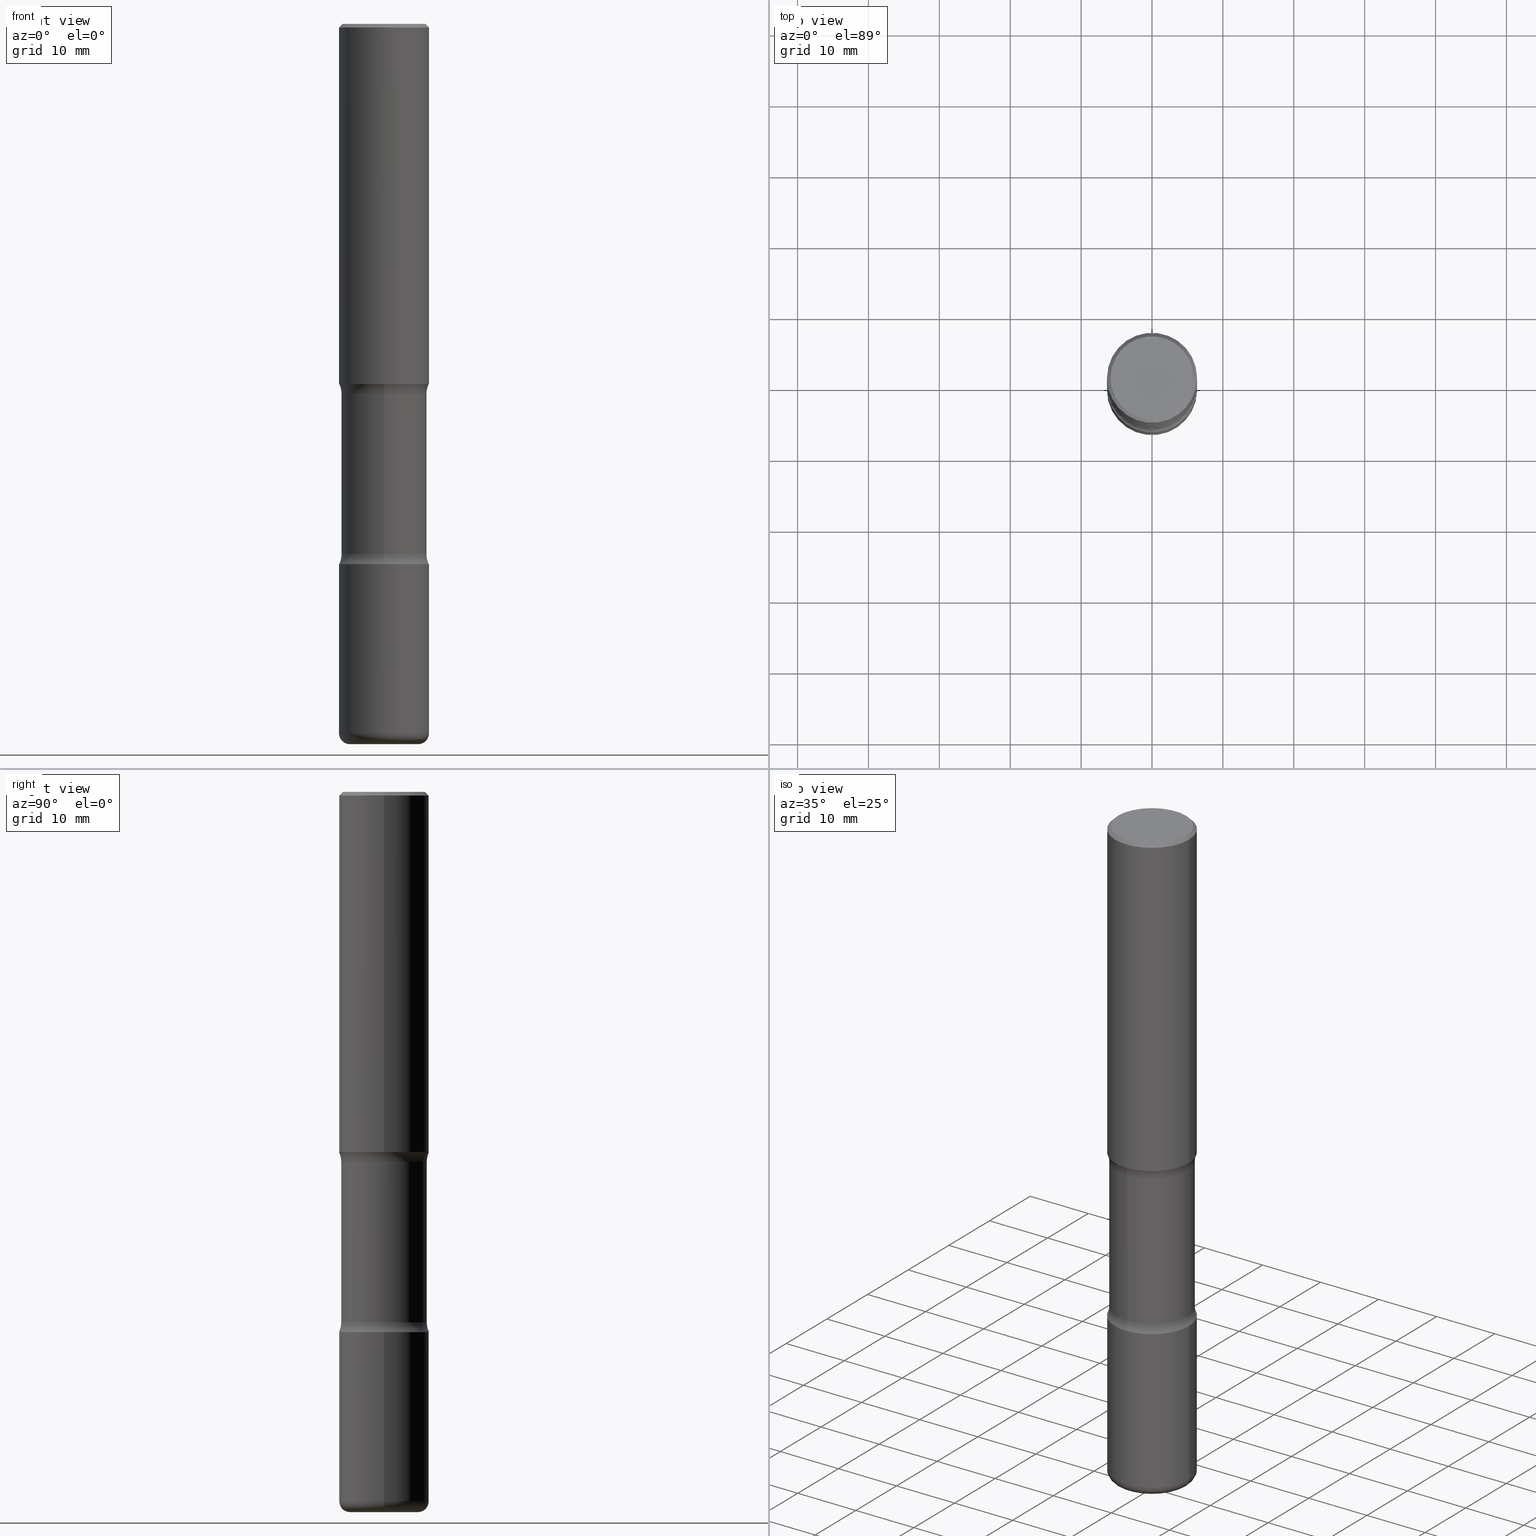
[diagram: canonical four-view strip — front | top / right | iso, engineering-drawing reading convention]
A machine part, canonical four-view strip (front | top / right | iso — engineering-drawing reading convention). The complete STEP part file that produces these views, byte-faithful:
ISO-10303-21;
HEADER;
FILE_DESCRIPTION (( 'STEP AP203' ),
    '1' );
FILE_NAME ('37882.STEP',
    '2024-03-02T01:02:48',
    ( '' ),
    ( '' ),
    'SwSTEP 2.0',
    'SolidWorks 2023',
    '' );
FILE_SCHEMA (( 'CONFIG_CONTROL_DESIGN' ));
ENDSEC;

DATA;
#1 = ORIENTED_EDGE ( 'NONE', *, *, #495, .T. ) ;
#2 = DATE_AND_TIME ( #174, #307 ) ;
#3 = CYLINDRICAL_SURFACE ( 'NONE', #127, 0.2500000000000003331 ) ;
#4 = AXIS2_PLACEMENT_3D ( 'NONE', #512, #84, #30 ) ;
#5 = FACE_OUTER_BOUND ( 'NONE', #252, .T. ) ;
#6 = VECTOR ( 'NONE', #262, 39.37007874015748143 ) ;
#7 = SECURITY_CLASSIFICATION_LEVEL ( 'unclassified' ) ;
#8 = DIRECTION ( 'NONE',  ( -2.445468806185136597E-29, 3.491481338843145583E-15, 1.000000000000000000 ) ) ;
#9 = LINE ( 'NONE', #469, #6 ) ;
#10 = PERSON_AND_ORGANIZATION_ROLE ( 'design_supplier' ) ;
#11 = DIRECTION ( 'NONE',  ( 6.982962677686265922E-15, 1.000000000000000000, -3.369885892833230592E-15 ) ) ;
#12 = CARTESIAN_POINT ( 'NONE',  ( 9.781875224740546387E-29, -1.396592535537258233E-14, -4.000000000000000000 ) ) ;
#13 = ORIENTED_EDGE ( 'NONE', *, *, #245, .T. ) ;
#14 = DIRECTION ( 'NONE',  ( 7.105427357601001859E-15, 1.000000000000000000, -3.491481338843145583E-15 ) ) ;
#15 = FACE_OUTER_BOUND ( 'NONE', #299, .T. ) ;
#16 = VECTOR ( 'NONE', #150, 39.37007874015748143 ) ;
#17 = ADVANCED_FACE ( 'NONE', ( #15 ), #170, .F. ) ;
#18 = AXIS2_PLACEMENT_3D ( 'NONE', #482, #514, #545 ) ;
#19 = ADVANCED_FACE ( 'NONE', ( #533 ), #438, .F. ) ;
#20 =( LENGTH_UNIT ( ) NAMED_UNIT ( * ) SI_UNIT ( $, .METRE. ) );
#21 = CARTESIAN_POINT ( 'NONE',  ( -1.715124499442836348E-15, -0.2500000000000074385, -1.999999999999999112 ) ) ;
#22 = PERSON ( 'UNSPECIFIED', 'UNSPECIFIED', 'UNSPECIFIED', ('UNSPECIFIED'), ('UNSPECIFIED'), ('UNSPECIFIED') ) ;
#23 = DIRECTION ( 'NONE',  ( 6.982962677686265922E-15, 1.000000000000000000, -4.370956789862816416E-15 ) ) ;
#24 = CARTESIAN_POINT ( 'NONE',  ( -1.672246386956763723E-15, -0.2375000000000074274, -2.054486236794258236 ) ) ;
#25 = DIRECTION ( 'NONE',  ( -1.000000000000000000, 6.982962677686267499E-15, 0.000000000000000000 ) ) ;
#26 = DIRECTION ( 'NONE',  ( -2.445468806185136597E-29, 3.491481338843145583E-15, 1.000000000000000000 ) ) ;
#27 = AXIS2_PLACEMENT_3D ( 'NONE', #459, #159, #329 ) ;
#28 = AXIS2_PLACEMENT_3D ( 'NONE', #518, #134, #25 ) ;
#29 = DIRECTION ( 'NONE',  ( 1.000000000000000000, -6.982962677686265922E-15, 0.000000000000000000 ) ) ;
#30 = DIRECTION ( 'NONE',  ( 1.000000000000000000, -6.982962677686269077E-15, 4.883557194083113462E-29 ) ) ;
#31 = CARTESIAN_POINT ( 'NONE',  ( 7.203162026108633562E-29, -1.028420633753849345E-14, -2.945513763205741320 ) ) ;
#32 = VERTEX_POINT ( 'NONE', #94 ) ;
#33 = CC_DESIGN_APPROVAL ( #458, ( #198 ) ) ;
#34 = CIRCLE ( 'NONE', #549, 0.2500000000000002776 ) ;
#35 = EDGE_LOOP ( 'NONE', ( #306, #277 ) ) ;
#36 = EDGE_CURVE ( 'NONE', #82, #128, #389, .T. ) ;
#37 = CC_DESIGN_PERSON_AND_ORGANIZATION_ASSIGNMENT ( #138, #352, ( #410 ) ) ;
#38 = VERTEX_POINT ( 'NONE', #309 ) ;
#39 = MANIFOLD_SOLID_BREP ( 'Body-Move/Copy2[4]', #259 ) ;
#40 = ORIENTED_EDGE ( 'NONE', *, *, #212, .F. ) ;
#41 = CARTESIAN_POINT ( 'NONE',  ( -0.2299999999999998990, 1.640996229256271928E-15, -1.135408596578605420E-29 ) ) ;
#42 = CIRCLE ( 'NONE', #490, 0.2500000000000003886 ) ;
#43 = AXIS2_PLACEMENT_3D ( 'NONE', #278, #179, #475 ) ;
#44 = EDGE_LOOP ( 'NONE', ( #460, #1, #121, #476 ) ) ;
#45 = CARTESIAN_POINT ( 'NONE',  ( 7.198535619023675570E-29, -1.029083161580289368E-14, -2.945513763205741320 ) ) ;
#46 = APPROVAL_DATE_TIME ( #430, #458 ) ;
#47 = CARTESIAN_POINT ( 'NONE',  ( 4.976491023364875751E-29, -7.241496556518841686E-15, -2.054486236794258680 ) ) ;
#48 = AXIS2_PLACEMENT_3D ( 'NONE', #243, #296, #419 ) ;
#49 = DIRECTION ( 'NONE',  ( 1.000000000000000000, -6.982962677686270655E-15, 0.000000000000000000 ) ) ;
#50 = CIRCLE ( 'NONE', #508, 0.2375000000000001277 ) ;
#51 = PLANE ( 'NONE',  #18 ) ;
#52 = EDGE_CURVE ( 'NONE', #78, #82, #9, .T. ) ;
#53 = CALENDAR_DATE ( 2024, 1, 3 ) ;
#54 = DIRECTION ( 'NONE',  ( -6.982962677686266711E-15, -1.000000000000000000, 3.491481338843145583E-15 ) ) ;
#55 = ORIENTED_EDGE ( 'NONE', *, *, #225, .F. ) ;
#56 = PERSON_AND_ORGANIZATION_ROLE ( 'creator' ) ;
#57 = ORIENTED_EDGE ( 'NONE', *, *, #142, .F. ) ;
#58 = DIRECTION ( 'NONE',  ( 6.982962677686265133E-15, 1.000000000000000000, -2.300503573612010239E-15 ) ) ;
#59 = DATE_TIME_ROLE ( 'creation_date' ) ;
#60 = PLANE ( 'NONE',  #302 ) ;
#61 = DIRECTION ( 'NONE',  ( 2.438088387897960049E-29, -3.491481338843145188E-15, -1.000000000000000000 ) ) ;
#62 =( GEOMETRIC_REPRESENTATION_CONTEXT ( 3 ) GLOBAL_UNCERTAINTY_ASSIGNED_CONTEXT ( ( #552 ) ) GLOBAL_UNIT_ASSIGNED_CONTEXT ( ( #350, #536, #488 ) ) REPRESENTATION_CONTEXT ( 'NONE', 'WORKASPACE' ) );
#63 = CC_DESIGN_PERSON_AND_ORGANIZATION_ASSIGNMENT ( #220, #56, ( #198 ) ) ;
#64 = AXIS2_PLACEMENT_3D ( 'NONE', #394, #8, #92 ) ;
#65 = EDGE_CURVE ( 'NONE', #172, #229, #424, .T. ) ;
#66 = CARTESIAN_POINT ( 'NONE',  ( 0.000000000000000000, 0.000000000000000000, 0.000000000000000000 ) ) ;
#67 = ORIENTED_EDGE ( 'NONE', *, *, #285, .F. ) ;
#68 = DIRECTION ( 'NONE',  ( -2.445468806185136597E-29, 3.491481338843145583E-15, 1.000000000000000000 ) ) ;
#69 = MANIFOLD_SOLID_BREP ( 'Body-Move/Copy2[2]', #163 ) ;
#70 = LINE ( 'NONE', #364, #87 ) ;
#71 = CIRCLE ( 'NONE', #272, 0.2500000000000003886 ) ;
#72 = AXIS2_PLACEMENT_3D ( 'NONE', #75, #373, #113 ) ;
#73 = DIRECTION ( 'NONE',  ( 2.530378452311521502E-29, -3.369885892833230986E-15, -1.000000000000000000 ) ) ;
#74 = DATE_AND_TIME ( #149, #478 ) ;
#75 = CARTESIAN_POINT ( 'NONE',  ( 7.198535619023675570E-29, -1.029083161580289368E-14, -2.945513763205741320 ) ) ;
#76 = ORIENTED_EDGE ( 'NONE', *, *, #495, .F. ) ;
#77 = ADVANCED_FACE ( 'NONE', ( #173 ), #213, .T. ) ;
#78 = VERTEX_POINT ( 'NONE', #196 ) ;
#79 = CC_DESIGN_PERSON_AND_ORGANIZATION_ASSIGNMENT ( #398, #144, ( #420 ) ) ;
#80 = AXIS2_PLACEMENT_3D ( 'NONE', #31, #236, #194 ) ;
#81 = ORIENTED_EDGE ( 'NONE', *, *, #280, .T. ) ;
#82 = VERTEX_POINT ( 'NONE', #154 ) ;
#83 = VERTEX_POINT ( 'NONE', #439 ) ;
#84 = DIRECTION ( 'NONE',  ( -2.445468806185136597E-29, 3.491481338843145583E-15, 1.000000000000000000 ) ) ;
#85 = VECTOR ( 'NONE', #521, 39.37007874015748143 ) ;
#86 = DIRECTION ( 'NONE',  ( -2.445468806185136877E-29, 3.491481338843145188E-15, 1.000000000000000000 ) ) ;
#87 = VECTOR ( 'NONE', #330, 39.37007874015748143 ) ;
#88 = EDGE_LOOP ( 'NONE', ( #76, #503, #513, #171 ) ) ;
#89 = VERTEX_POINT ( 'NONE', #143 ) ;
#90 = ADVANCED_FACE ( 'NONE', ( #318 ), #485, .T. ) ;
#91 = DIRECTION ( 'NONE',  ( 1.000000000000000000, -6.982962677686267499E-15, 0.000000000000000000 ) ) ;
#92 = DIRECTION ( 'NONE',  ( 1.000000000000000000, -6.982962677686269077E-15, 0.000000000000000000 ) ) ;
#93 = CARTESIAN_POINT ( 'NONE',  ( 1.658453635950587543E-15, 0.2374999999999862776, -4.000000000000000888 ) ) ;
#94 = CARTESIAN_POINT ( 'NONE',  ( -0.2500000000000003331, -1.198007963564174197E-14, -3.939999999999999947 ) ) ;
#95 = COORDINATED_UNIVERSAL_TIME_OFFSET ( 5, 0, .BEHIND. ) ;
#96 = DIRECTION ( 'NONE',  ( 6.860497997771532351E-15, 1.000000000000000000, 0.000000000000000000 ) ) ;
#97 = APPROVAL_PERSON_ORGANIZATION ( #184, #458, #472 ) ;
#98 = CARTESIAN_POINT ( 'NONE',  ( -0.1900000000000003630, -1.229798689653506559E-14, -4.000000000000000000 ) ) ;
#99 = AXIS2_PLACEMENT_3D ( 'NONE', #440, #531, #228 ) ;
#100 = PERSON_AND_ORGANIZATION ( #22, #334 ) ;
#101 = FACE_OUTER_BOUND ( 'NONE', #211, .T. ) ;
#102 = EDGE_CURVE ( 'NONE', #497, #208, #189, .T. ) ;
#103 = ORIENTED_EDGE ( 'NONE', *, *, #429, .F. ) ;
#104 = DIRECTION ( 'NONE',  ( 2.530378452311521502E-29, -3.369885892833230986E-15, -1.000000000000000000 ) ) ;
#105 = EDGE_CURVE ( 'NONE', #555, #522, #362, .T. ) ;
#106 = CARTESIAN_POINT ( 'NONE',  ( 0.000000000000000000, 0.000000000000000000, 0.000000000000000000 ) ) ;
#107 = FACE_OUTER_BOUND ( 'NONE', #136, .T. ) ;
#108 = CARTESIAN_POINT ( 'NONE',  ( 0.000000000000000000, 0.000000000000000000, 0.000000000000000000 ) ) ;
#109 = CONICAL_SURFACE ( 'NONE', #283, 0.2499999999999999167, 0.7853981633974472798 ) ;
#110 = DIRECTION ( 'NONE',  ( 2.530378452311521502E-29, -3.369885892833230986E-15, -1.000000000000000000 ) ) ;
#111 = EDGE_CURVE ( 'NONE', #89, #229, #244, .T. ) ;
#112 = CARTESIAN_POINT ( 'NONE',  ( 9.635147096369438236E-29, -1.375643647504199401E-14, -3.939999999999999947 ) ) ;
#113 = DIRECTION ( 'NONE',  ( 6.982962677686265133E-15, 1.000000000000000000, -2.300503573612010239E-15 ) ) ;
#114 = CARTESIAN_POINT ( 'NONE',  ( 0.000000000000000000, 0.000000000000000000, 0.000000000000000000 ) ) ;
#115 = DIRECTION ( 'NONE',  ( 1.000000000000000000, -6.860497997771530774E-15, 4.842287994361612002E-29 ) ) ;
#116 = DIMENSIONAL_EXPONENTS ( 1.000000000000000000, 0.000000000000000000, 0.000000000000000000, 0.000000000000000000, 0.000000000000000000, 0.000000000000000000, 0.000000000000000000 ) ;
#117 = CIRCLE ( 'NONE', #325, 0.05999999999999997696 ) ;
#118 = DIRECTION ( 'NONE',  ( -2.445468806185136597E-29, 3.491481338843145583E-15, 1.000000000000000000 ) ) ;
#119 = CIRCLE ( 'NONE', #339, 0.2500000000000003886 ) ;
#120 = VECTOR ( 'NONE', #147, 39.37007874015748143 ) ;
#121 = ORIENTED_EDGE ( 'NONE', *, *, #36, .F. ) ;
#122 = ORIENTED_EDGE ( 'NONE', *, *, #111, .T. ) ;
#123 = DIRECTION ( 'NONE',  ( -2.530378452311521502E-29, 3.369885892833230592E-15, 1.000000000000000000 ) ) ;
#124 = ORIENTED_EDGE ( 'NONE', *, *, #65, .T. ) ;
#125 = ADVANCED_FACE ( 'NONE', ( #525 ), #60, .F. ) ;
#126 = AXIS2_PLACEMENT_3D ( 'NONE', #135, #444, #396 ) ;
#127 = AXIS2_PLACEMENT_3D ( 'NONE', #108, #291, #327 ) ;
#128 = VERTEX_POINT ( 'NONE', #221 ) ;
#129 = DIRECTION ( 'NONE',  ( -6.982962677686265922E-15, -1.000000000000000000, 3.369885892833230592E-15 ) ) ;
#130 = ORIENTED_EDGE ( 'NONE', *, *, #504, .F. ) ;
#131 = CARTESIAN_POINT ( 'NONE',  ( -0.2499999999999999167, 1.675911042644703182E-15, -0.02000000000000006981 ) ) ;
#132 = ORIENTED_EDGE ( 'NONE', *, *, #270, .F. ) ;
#133 = AXIS2_PLACEMENT_3D ( 'NONE', #203, #240, #332 ) ;
#134 = DIRECTION ( 'NONE',  ( 2.445468806185136597E-29, -3.491481338843145583E-15, -1.000000000000000000 ) ) ;
#135 = CARTESIAN_POINT ( 'NONE',  ( 4.890937612370273194E-29, -6.982962677686291165E-15, -2.000000000000000000 ) ) ;
#136 = EDGE_LOOP ( 'NONE', ( #416, #214 ) ) ;
#137 = FACE_OUTER_BOUND ( 'NONE', #166, .T. ) ;
#138 = PERSON_AND_ORGANIZATION ( #22, #334 ) ;
#139 = VECTOR ( 'NONE', #86, 39.37007874015748143 ) ;
#140 = ORIENTED_EDGE ( 'NONE', *, *, #371, .F. ) ;
#141 = CIRCLE ( 'NONE', #427, 0.2499999999999999167 ) ;
#142 = EDGE_CURVE ( 'NONE', #83, #172, #519, .T. ) ;
#143 = CARTESIAN_POINT ( 'NONE',  ( 1.745740669421641422E-15, 0.2499999999999897582, -3.000000000000000888 ) ) ;
#144 = PERSON_AND_ORGANIZATION_ROLE ( 'creator' ) ;
#145 = DIRECTION ( 'NONE',  ( 1.000000000000000000, -6.982962677686265922E-15, 4.876176775795935793E-29 ) ) ;
#146 = DIRECTION ( 'NONE',  ( -2.445468806185136597E-29, 3.491481338843145583E-15, 1.000000000000000000 ) ) ;
#147 = DIRECTION ( 'NONE',  ( -2.445468806185136877E-29, 3.491481338843145188E-15, 1.000000000000000000 ) ) ;
#148 = CARTESIAN_POINT ( 'NONE',  ( 7.336406418555409790E-29, -1.047444401652943635E-14, -3.000000000000000444 ) ) ;
#149 = CALENDAR_DATE ( 2024, 1, 3 ) ;
#150 = DIRECTION ( 'NONE',  ( -2.445468806185136877E-29, 3.491481338843145188E-15, 1.000000000000000000 ) ) ;
#151 = MECHANICAL_CONTEXT ( 'NONE', #216, 'mechanical' ) ;
#152 = CIRCLE ( 'NONE', #126, 0.2500000000000001665 ) ;
#153 = DIRECTION ( 'NONE',  ( 6.982962677686265133E-15, 1.000000000000000000, -2.300503573612010239E-15 ) ) ;
#154 = CARTESIAN_POINT ( 'NONE',  ( 0.2500000000000002776, -1.222018468595100619E-14, -3.000000000000000444 ) ) ;
#155 = EDGE_CURVE ( 'NONE', #522, #78, #557, .T. ) ;
#156 = ADVANCED_FACE ( 'NONE', ( #101 ), #314, .F. ) ;
#157 = EDGE_LOOP ( 'NONE', ( #57, #227, #122, #421 ) ) ;
#158 = DIRECTION ( 'NONE',  ( 1.000000000000000000, -6.982962677686267499E-15, 0.000000000000000000 ) ) ;
#159 = DIRECTION ( 'NONE',  ( 0.000000000000000000, 0.000000000000000000, 1.000000000000000000 ) ) ;
#160 = DIRECTION ( 'NONE',  ( 2.530378452311521502E-29, -3.369885892833230986E-15, -1.000000000000000000 ) ) ;
#161 = AXIS2_PLACEMENT_3D ( 'NONE', #106, #356, #392 ) ;
#162 = EDGE_CURVE ( 'NONE', #555, #32, #117, .T. ) ;
#163 = CLOSED_SHELL ( 'NONE', ( #559, #77, #395, #365, #19, #526 ) ) ;
#164 = EDGE_LOOP ( 'NONE', ( #493, #132 ) ) ;
#165 = EDGE_LOOP ( 'NONE', ( #428, #553, #386, #317 ) ) ;
#166 = EDGE_LOOP ( 'NONE', ( #199, #524, #301, #298 ) ) ;
#167 = EDGE_CURVE ( 'NONE', #304, #348, #402, .T. ) ;
#168 = LINE ( 'NONE', #131, #435 ) ;
#169 = LOCAL_TIME ( 20, 2, 48.00000000000000000, #520 ) ;
#170 = TOROIDAL_SURFACE ( 'NONE', #343, 0.3625000000000000999, 0.1250000000000000000 ) ;
#171 = ORIENTED_EDGE ( 'NONE', *, *, #280, .F. ) ;
#172 = VERTEX_POINT ( 'NONE', #431 ) ;
#173 = FACE_OUTER_BOUND ( 'NONE', #258, .T. ) ;
#174 = CALENDAR_DATE ( 2024, 1, 3 ) ;
#175 = AXIS2_PLACEMENT_3D ( 'NONE', #551, #123, #129 ) ;
#176 = DIRECTION ( 'NONE',  ( -2.445468806185136597E-29, 3.491481338843145583E-15, 1.000000000000000000 ) ) ;
#177 = EDGE_LOOP ( 'NONE', ( #383, #336 ) ) ;
#178 = FACE_OUTER_BOUND ( 'NONE', #182, .T. ) ;
#179 = DIRECTION ( 'NONE',  ( -1.000000000000000000, 6.982962677686265922E-15, -4.883557194083112340E-29 ) ) ;
#180 = DIRECTION ( 'NONE',  ( -1.000000000000000000, 6.982962677686265922E-15, -4.876176775795935793E-29 ) ) ;
#181 = CARTESIAN_POINT ( 'NONE',  ( 0.1900000000000003630, -1.508319938380238721E-14, -3.939999999999999947 ) ) ;
#182 = EDGE_LOOP ( 'NONE', ( #250, #81 ) ) ;
#183 = CARTESIAN_POINT ( 'NONE',  ( 4.890937612370289799E-31, -6.982962677686315028E-17, -0.02000000000000006981 ) ) ;
#184 = PERSON_AND_ORGANIZATION ( #22, #334 ) ;
#185 = DIRECTION ( 'NONE',  ( -1.000000000000000000, 7.105427357600993970E-15, 0.000000000000000000 ) ) ;
#186 = AXIS2_PLACEMENT_3D ( 'NONE', #66, #489, #498 ) ;
#187 = CIRCLE ( 'NONE', #517, 0.2500000000000002776 ) ;
#188 = ORIENTED_EDGE ( 'NONE', *, *, #417, .T. ) ;
#189 = CIRCLE ( 'NONE', #43, 0.1250000000000000000 ) ;
#190 = CARTESIAN_POINT ( 'NONE',  ( -0.2499999999999999167, 1.675911042644703182E-15, -0.02000000000000006981 ) ) ;
#191 = DIRECTION ( 'NONE',  ( 2.530378452311521502E-29, -3.369885892833230986E-15, -1.000000000000000000 ) ) ;
#192 = CARTESIAN_POINT ( 'NONE',  ( 0.2499999999999999167, -1.784954126219745400E-15, -0.02000000000000006981 ) ) ;
#193 = APPROVAL_ROLE ( '' ) ;
#194 = DIRECTION ( 'NONE',  ( 6.982962677686265922E-15, 1.000000000000000000, -3.369885892833230986E-15 ) ) ;
#195 = DIRECTION ( 'NONE',  ( 1.000000000000000000, -6.982962677686269077E-15, 0.000000000000000000 ) ) ;
#196 = CARTESIAN_POINT ( 'NONE',  ( 0.2500000000000003331, -1.550217714446356385E-14, -3.939999999999999947 ) ) ;
#197 = CC_DESIGN_PERSON_AND_ORGANIZATION_ASSIGNMENT ( #390, #10, ( #198 ) ) ;
#198 = PRODUCT_DEFINITION_FORMATION_WITH_SPECIFIED_SOURCE ( 'ANY', '', #391, .NOT_KNOWN. ) ;
#199 = ORIENTED_EDGE ( 'NONE', *, *, #535, .T. ) ;
#200 = DIRECTION ( 'NONE',  ( 1.000000000000000000, -6.982962677686269077E-15, 4.883557194083113462E-29 ) ) ;
#201 = AXIS2_PLACEMENT_3D ( 'NONE', #230, #264, #96 ) ;
#202 = ADVANCED_FACE ( 'NONE', ( #219 ), #3, .T. ) ;
#203 = CARTESIAN_POINT ( 'NONE',  ( 0.000000000000000000, 0.000000000000000000, 0.000000000000000000 ) ) ;
#204 = CARTESIAN_POINT ( 'NONE',  ( -0.2500000000000003331, 1.776356839400252831E-15, -1.229733772563727987E-29 ) ) ;
#205 = CIRCLE ( 'NONE', #382, 0.2500000000000003886 ) ;
#206 = ORIENTED_EDGE ( 'NONE', *, *, #417, .F. ) ;
#207 = AXIS2_PLACEMENT_3D ( 'NONE', #183, #436, #358 ) ;
#208 = VERTEX_POINT ( 'NONE', #491 ) ;
#209 = ORIENTED_EDGE ( 'NONE', *, *, #388, .F. ) ;
#210 = APPLICATION_PROTOCOL_DEFINITION ( 'international standard', 'config_control_design', 1994, #249 ) ;
#211 = EDGE_LOOP ( 'NONE', ( #140, #374, #124, #550 ) ) ;
#212 = EDGE_CURVE ( 'NONE', #443, #464, #308, .T. ) ;
#213 = CONICAL_SURFACE ( 'NONE', #28, 0.2499999999999999167, 0.7853981633974472798 ) ;
#214 = ORIENTED_EDGE ( 'NONE', *, *, #285, .T. ) ;
#215 = EDGE_CURVE ( 'NONE', #229, #172, #260, .T. ) ;
#216 = APPLICATION_CONTEXT ( 'configuration controlled 3d designs of mechanical parts and assemblies' ) ;
#217 = DIRECTION ( 'NONE',  ( 2.530378452311521502E-29, -3.369885892833230986E-15, -1.000000000000000000 ) ) ;
#218 = EDGE_CURVE ( 'NONE', #38, #303, #496, .T. ) ;
#219 = FACE_OUTER_BOUND ( 'NONE', #44, .T. ) ;
#220 = PERSON_AND_ORGANIZATION ( #22, #334 ) ;
#221 = CARTESIAN_POINT ( 'NONE',  ( -0.2500000000000002776, -1.033908340638546235E-14, -3.000000000000000444 ) ) ;
#222 = AXIS2_PLACEMENT_3D ( 'NONE', #326, #110, #23 ) ;
#223 = APPLICATION_PROTOCOL_DEFINITION ( 'international standard', 'config_control_design', 1994, #216 ) ;
#224 = ORIENTED_EDGE ( 'NONE', *, *, #237, .F. ) ;
#225 = EDGE_CURVE ( 'NONE', #234, #311, #385, .T. ) ;
#226 = CARTESIAN_POINT ( 'NONE',  ( 0.1900000000000003630, -1.529268826413297711E-14, -4.000000000000000000 ) ) ;
#227 = ORIENTED_EDGE ( 'NONE', *, *, #305, .F. ) ;
#228 = DIRECTION ( 'NONE',  ( 6.982962677686265922E-15, 1.000000000000000000, -3.369885892833230986E-15 ) ) ;
#229 = VERTEX_POINT ( 'NONE', #454 ) ;
#230 = CARTESIAN_POINT ( 'NONE',  ( -2.486930524192108484E-15, -0.3625000000000104250, -2.945513763205740432 ) ) ;
#231 = APPROVAL_PERSON_ORGANIZATION ( #100, #432, #193 ) ;
#232 = DIRECTION ( 'NONE',  ( 1.000000000000000000, -6.982962677686267499E-15, 4.876176775795935793E-29 ) ) ;
#233 = AXIS2_PLACEMENT_3D ( 'NONE', #484, #26, #29 ) ;
#234 = VERTEX_POINT ( 'NONE', #24 ) ;
#235 = CARTESIAN_POINT ( 'NONE',  ( 7.336406418555409790E-29, -1.047444401652943635E-14, -3.000000000000000444 ) ) ;
#236 = DIRECTION ( 'NONE',  ( 2.530378452311521502E-29, -3.369885892833230986E-15, -1.000000000000000000 ) ) ;
#237 = EDGE_CURVE ( 'NONE', #497, #234, #50, .T. ) ;
#238 = ADVANCED_FACE ( 'NONE', ( #323 ), #286, .F. ) ;
#239 = DIRECTION ( 'NONE',  ( 6.982962677686265133E-15, 1.000000000000000000, -3.278217592397110735E-15 ) ) ;
#240 = DIRECTION ( 'NONE',  ( -2.445468806185136597E-29, 3.491481338843145583E-15, 1.000000000000000000 ) ) ;
#241 = EDGE_CURVE ( 'NONE', #348, #303, #141, .T. ) ;
#242 = CC_DESIGN_SECURITY_CLASSIFICATION ( #410, ( #198 ) ) ;
#243 = CARTESIAN_POINT ( 'NONE',  ( 4.943898765775623630E-29, -7.288170524422749615E-15, -2.054486236794258680 ) ) ;
#244 = CIRCLE ( 'NONE', #437, 0.1250000000000000278 ) ;
#245 = EDGE_CURVE ( 'NONE', #303, #348, #447, .T. ) ;
#246 = ADVANCED_FACE ( 'NONE', ( #178 ), #51, .F. ) ;
#247 = DIRECTION ( 'NONE',  ( 6.982962677686265922E-15, 1.000000000000000000, -3.369885892833230986E-15 ) ) ;
#248 = DIRECTION ( 'NONE',  ( 6.982962677686265133E-15, 1.000000000000000000, -3.450755360418014766E-15 ) ) ;
#249 = APPLICATION_CONTEXT ( 'configuration controlled 3d designs of mechanical parts and assemblies' ) ;
#250 = ORIENTED_EDGE ( 'NONE', *, *, #36, .T. ) ;
#251 = CC_DESIGN_APPROVAL ( #432, ( #410 ) ) ;
#252 = EDGE_LOOP ( 'NONE', ( #560, #265, #466, #354 ) ) ;
#253 = ADVANCED_BREP_SHAPE_REPRESENTATION ( '37882', ( #411, #69, #39, #27 ), #62 ) ;
#254 = CIRCLE ( 'NONE', #222, 0.2500000000000002776 ) ;
#255 = ORIENTED_EDGE ( 'NONE', *, *, #544, .T. ) ;
#256 = ADVANCED_FACE ( 'NONE', ( #372 ), #449, .T. ) ;
#257 = ORIENTED_EDGE ( 'NONE', *, *, #342, .T. ) ;
#258 = EDGE_LOOP ( 'NONE', ( #67, #505, #473, #206 ) ) ;
#259 = CLOSED_SHELL ( 'NONE', ( #90, #156, #369, #17, #125, #423, #238, #256 ) ) ;
#260 = CIRCLE ( 'NONE', #72, 0.2375000000000000722 ) ;
#261 = EDGE_CURVE ( 'NONE', #234, #172, #70, .T. ) ;
#262 = DIRECTION ( 'NONE',  ( -2.445468806185136877E-29, 3.491481338843145188E-15, 1.000000000000000000 ) ) ;
#263 = COORDINATED_UNIVERSAL_TIME_OFFSET ( 5, 0, .BEHIND. ) ;
#264 = DIRECTION ( 'NONE',  ( 1.000000000000000000, -6.860497997771530774E-15, 4.842287994361612002E-29 ) ) ;
#265 = ORIENTED_EDGE ( 'NONE', *, *, #270, .T. ) ;
#266 = APPROVAL_ROLE ( '' ) ;
#267 = DIRECTION ( 'NONE',  ( -1.000000000000000000, 6.982962677686265922E-15, -4.883557194083112340E-29 ) ) ;
#268 = CARTESIAN_POINT ( 'NONE',  ( 1.658453635950538436E-15, 0.2374999999999928557, -2.054486236794259568 ) ) ;
#269 = CARTESIAN_POINT ( 'NONE',  ( 7.336406418555409790E-29, -1.047444401652943635E-14, -3.000000000000000444 ) ) ;
#270 = EDGE_CURVE ( 'NONE', #38, #304, #471, .T. ) ;
#271 = CALENDAR_DATE ( 2024, 1, 3 ) ;
#272 = AXIS2_PLACEMENT_3D ( 'NONE', #378, #300, #461 ) ;
#273 = CC_DESIGN_DATE_AND_TIME_ASSIGNMENT ( #393, #479, ( #410 ) ) ;
#274 = AXIS2_PLACEMENT_3D ( 'NONE', #269, #357, #49 ) ;
#275 = ORIENTED_EDGE ( 'NONE', *, *, #342, .F. ) ;
#276 = CARTESIAN_POINT ( 'NONE',  ( -0.1900000000000003630, -1.240640527709780088E-14, -3.939999999999999947 ) ) ;
#277 = ORIENTED_EDGE ( 'NONE', *, *, #371, .T. ) ;
#278 = CARTESIAN_POINT ( 'NONE',  ( 2.531323970661321775E-15, 0.3624999999999928280, -2.054486236794260012 ) ) ;
#279 = CARTESIAN_POINT ( 'NONE',  ( 1.606081415867840476E-15, 0.2299999999999998990, -8.030407079339231961E-16 ) ) ;
#280 = EDGE_CURVE ( 'NONE', #128, #82, #34, .T. ) ;
#281 = CARTESIAN_POINT ( 'NONE',  ( 9.866784870866931853E-29, -1.384432990936266734E-14, -4.000000000000000000 ) ) ;
#282 = CARTESIAN_POINT ( 'NONE',  ( -0.2500000000000000555, 1.776356839400250859E-15, -1.229733772563726866E-29 ) ) ;
#283 = AXIS2_PLACEMENT_3D ( 'NONE', #381, #422, #375 ) ;
#284 = PLANE ( 'NONE',  #295 ) ;
#285 = EDGE_CURVE ( 'NONE', #464, #443, #359, .T. ) ;
#286 = TOROIDAL_SURFACE ( 'NONE', #80, 0.3625000000000000999, 0.1250000000000000278 ) ;
#287 = CARTESIAN_POINT ( 'NONE',  ( 4.806027966243888288E-29, -7.104558123696206156E-15, -2.000000000000000000 ) ) ;
#288 = EDGE_LOOP ( 'NONE', ( #209, #346, #255, #450 ) ) ;
#289 = FACE_OUTER_BOUND ( 'NONE', #288, .T. ) ;
#290 = ADVANCED_FACE ( 'NONE', ( #534 ), #463, .T. ) ;
#291 = DIRECTION ( 'NONE',  ( -2.445468806185136597E-29, 3.491481338843145583E-15, 1.000000000000000000 ) ) ;
#292 = DIRECTION ( 'NONE',  ( -2.445468806185136597E-29, 3.491481338843145583E-15, 1.000000000000000000 ) ) ;
#293 = DIRECTION ( 'NONE',  ( 6.860497997771529985E-15, 1.000000000000000000, 0.000000000000000000 ) ) ;
#294 = APPROVAL ( #360, 'UNSPECIFIED' ) ;
#295 = AXIS2_PLACEMENT_3D ( 'NONE', #12, #61, #180 ) ;
#296 = DIRECTION ( 'NONE',  ( 2.530378452311521502E-29, -3.369885892833230986E-15, -1.000000000000000000 ) ) ;
#297 = AXIS2_PLACEMENT_3D ( 'NONE', #457, #115, #293 ) ;
#298 = ORIENTED_EDGE ( 'NONE', *, *, #167, .F. ) ;
#299 = EDGE_LOOP ( 'NONE', ( #55, #224, #380, #257 ) ) ;
#300 = DIRECTION ( 'NONE',  ( -2.445468806185136597E-29, 3.491481338843145583E-15, 1.000000000000000000 ) ) ;
#301 = ORIENTED_EDGE ( 'NONE', *, *, #241, .F. ) ;
#302 = AXIS2_PLACEMENT_3D ( 'NONE', #487, #433, #11 ) ;
#303 = VERTEX_POINT ( 'NONE', #190 ) ;
#304 = VERTEX_POINT ( 'NONE', #320 ) ;
#305 = EDGE_CURVE ( 'NONE', #89, #83, #254, .T. ) ;
#306 = ORIENTED_EDGE ( 'NONE', *, *, #305, .T. ) ;
#307 = LOCAL_TIME ( 20, 2, 48.00000000000000000, #530 ) ;
#308 = CIRCLE ( 'NONE', #133, 0.2299999999999998990 ) ;
#309 = CARTESIAN_POINT ( 'NONE',  ( -0.2500000000000001665, -1.750039312831323809E-15, -2.000000000000000000 ) ) ;
#310 = PERSON_AND_ORGANIZATION ( #22, #334 ) ;
#311 = VERTEX_POINT ( 'NONE', #21 ) ;
#312 = CARTESIAN_POINT ( 'NONE',  ( 2.531323970661343863E-15, 0.3624999999999897748, -2.945513763205742652 ) ) ;
#313 = DIRECTION ( 'NONE',  ( -2.438088387897960049E-29, 3.491481338843145188E-15, 1.000000000000000000 ) ) ;
#314 = TOROIDAL_SURFACE ( 'NONE', #99, 0.3625000000000000999, 0.1250000000000000278 ) ;
#315 = PRODUCT_DEFINITION_SHAPE ( 'NONE', 'NONE',  #420 ) ;
#316 = LENGTH_MEASURE_WITH_UNIT ( LENGTH_MEASURE( 0.02539999999999999897 ), #20 );
#317 = ORIENTED_EDGE ( 'NONE', *, *, #516, .F. ) ;
#318 = FACE_OUTER_BOUND ( 'NONE', #165, .T. ) ;
#319 = DATE_AND_TIME ( #53, #169 ) ;
#320 = CARTESIAN_POINT ( 'NONE',  ( 0.2500000000000001665, -8.728703347107858632E-15, -2.000000000000000000 ) ) ;
#321 = ORIENTED_EDGE ( 'NONE', *, *, #335, .T. ) ;
#322 = CARTESIAN_POINT ( 'NONE',  ( 9.866784870866931853E-29, -1.384432990936266734E-14, -4.000000000000000000 ) ) ;
#323 = FACE_OUTER_BOUND ( 'NONE', #157, .T. ) ;
#324 = VECTOR ( 'NONE', #527, 39.37007874015748143 ) ;
#325 = AXIS2_PLACEMENT_3D ( 'NONE', #276, #14, #185 ) ;
#326 = CARTESIAN_POINT ( 'NONE',  ( 7.336406418555409790E-29, -1.047444401652943635E-14, -3.000000000000000444 ) ) ;
#327 = DIRECTION ( 'NONE',  ( 1.000000000000000000, -6.982962677686266711E-15, 4.876176775795935793E-29 ) ) ;
#328 = FACE_OUTER_BOUND ( 'NONE', #88, .T. ) ;
#329 = DIRECTION ( 'NONE',  ( 1.000000000000000000, 0.000000000000000000, 0.000000000000000000 ) ) ;
#330 = DIRECTION ( 'NONE',  ( 2.530378452311521502E-29, -3.369885892833230592E-15, -1.000000000000000000 ) ) ;
#331 = APPROVAL_DATE_TIME ( #74, #432 ) ;
#332 = DIRECTION ( 'NONE',  ( 1.000000000000000000, -6.982962677686267499E-15, 4.876176775795936353E-29 ) ) ;
#333 = APPROVAL_PERSON_ORGANIZATION ( #310, #294, #266 ) ;
#334 = ORGANIZATION ( 'UNSPECIFIED', 'UNSPECIFIED', '' ) ;
#335 = EDGE_CURVE ( 'NONE', #522, #555, #349, .T. ) ;
#336 = ORIENTED_EDGE ( 'NONE', *, *, #105, .F. ) ;
#337 = DESIGN_CONTEXT ( 'detailed design', #249, 'design' ) ;
#338 = EDGE_LOOP ( 'NONE', ( #321, #397, #103, #509 ) ) ;
#339 = AXIS2_PLACEMENT_3D ( 'NONE', #287, #73, #239 ) ;
#340 = ORIENTED_EDGE ( 'NONE', *, *, #379, .F. ) ;
#341 = FACE_OUTER_BOUND ( 'NONE', #35, .T. ) ;
#342 = EDGE_CURVE ( 'NONE', #208, #311, #119, .T. ) ;
#343 = AXIS2_PLACEMENT_3D ( 'NONE', #47, #363, #434 ) ;
#344 = ORIENTED_EDGE ( 'NONE', *, *, #544, .F. ) ;
#345 = LINE ( 'NONE', #204, #139 ) ;
#346 = ORIENTED_EDGE ( 'NONE', *, *, #225, .T. ) ;
#347 = APPROVAL_STATUS ( 'not_yet_approved' ) ;
#348 = VERTEX_POINT ( 'NONE', #192 ) ;
#349 = CIRCLE ( 'NONE', #556, 0.1900000000000003630 ) ;
#350 =( CONVERSION_BASED_UNIT ( 'INCH', #316 ) LENGTH_UNIT ( ) NAMED_UNIT ( #116 ) );
#351 = CARTESIAN_POINT ( 'NONE',  ( 4.890937612370273194E-29, -6.982962677686291165E-15, -2.000000000000000000 ) ) ;
#352 = PERSON_AND_ORGANIZATION_ROLE ( 'classification_officer' ) ;
#353 = DIRECTION ( 'NONE',  ( 6.982962677686265133E-15, 1.000000000000000000, -3.278217592397110735E-15 ) ) ;
#354 = ORIENTED_EDGE ( 'NONE', *, *, #245, .F. ) ;
#355 = DIRECTION ( 'NONE',  ( 1.000000000000000000, -6.982962677686270655E-15, 0.000000000000000000 ) ) ;
#356 = DIRECTION ( 'NONE',  ( -2.445468806185136597E-29, 3.491481338843145583E-15, 1.000000000000000000 ) ) ;
#357 = DIRECTION ( 'NONE',  ( -2.445468806185136597E-29, 3.491481338843145583E-15, 1.000000000000000000 ) ) ;
#358 = DIRECTION ( 'NONE',  ( 1.000000000000000000, -6.982962677686267499E-15, 0.000000000000000000 ) ) ;
#359 = CIRCLE ( 'NONE', #186, 0.2299999999999998990 ) ;
#360 = APPROVAL_STATUS ( 'not_yet_approved' ) ;
#361 = DIRECTION ( 'NONE',  ( -6.982962677686265133E-15, -1.000000000000000000, 0.000000000000000000 ) ) ;
#362 = CIRCLE ( 'NONE', #64, 0.1900000000000003630 ) ;
#363 = DIRECTION ( 'NONE',  ( 2.530378452311521502E-29, -3.369885892833230986E-15, -1.000000000000000000 ) ) ;
#364 = CARTESIAN_POINT ( 'NONE',  ( -1.629368274470640415E-15, -0.2375000000000139222, -3.999999999999999556 ) ) ;
#365 = ADVANCED_FACE ( 'NONE', ( #107 ), #368, .F. ) ;
#366 = CARTESIAN_POINT ( 'NONE',  ( 0.2500000000000000555, -1.745740669421567269E-15, 1.219044193948984228E-29 ) ) ;
#367 = DIRECTION ( 'NONE',  ( 2.530378452311521502E-29, -3.369885892833230986E-15, -1.000000000000000000 ) ) ;
#368 = PLANE ( 'NONE',  #548 ) ;
#369 = ADVANCED_FACE ( 'NONE', ( #289 ), #425, .F. ) ;
#370 = AXIS2_PLACEMENT_3D ( 'NONE', #45, #217, #387 ) ;
#371 = EDGE_CURVE ( 'NONE', #83, #89, #187, .T. ) ;
#372 = FACE_OUTER_BOUND ( 'NONE', #406, .T. ) ;
#373 = DIRECTION ( 'NONE',  ( 2.530378452311521502E-29, -3.369885892833230986E-15, -1.000000000000000000 ) ) ;
#374 = ORIENTED_EDGE ( 'NONE', *, *, #142, .T. ) ;
#375 = DIRECTION ( 'NONE',  ( -1.000000000000000000, 6.982962677686267499E-15, 0.000000000000000000 ) ) ;
#376 = AXIS2_PLACEMENT_3D ( 'NONE', #181, #54, #355 ) ;
#377 = ORIENTED_EDGE ( 'NONE', *, *, #261, .F. ) ;
#378 = CARTESIAN_POINT ( 'NONE',  ( 9.635147096369438236E-29, -1.375643647504199401E-14, -3.939999999999999947 ) ) ;
#379 = EDGE_CURVE ( 'NONE', #32, #78, #205, .T. ) ;
#380 = ORIENTED_EDGE ( 'NONE', *, *, #102, .T. ) ;
#381 = CARTESIAN_POINT ( 'NONE',  ( 4.890937612370289799E-31, -6.982962677686315028E-17, -0.02000000000000006981 ) ) ;
#382 = AXIS2_PLACEMENT_3D ( 'NONE', #112, #543, #158 ) ;
#383 = ORIENTED_EDGE ( 'NONE', *, *, #335, .F. ) ;
#384 = ADVANCED_FACE ( 'NONE', ( #328 ), #494, .T. ) ;
#385 = CIRCLE ( 'NONE', #297, 0.1250000000000000000 ) ;
#386 = ORIENTED_EDGE ( 'NONE', *, *, #215, .F. ) ;
#387 = DIRECTION ( 'NONE',  ( 6.982962677686265133E-15, 1.000000000000000000, -2.300503573612010239E-15 ) ) ;
#388 = EDGE_CURVE ( 'NONE', #234, #497, #507, .T. ) ;
#389 = CIRCLE ( 'NONE', #274, 0.2500000000000002776 ) ;
#390 = PERSON_AND_ORGANIZATION ( #22, #334 ) ;
#391 = PRODUCT ( '37882', '37882', '', ( #151 ) ) ;
#392 = DIRECTION ( 'NONE',  ( 1.000000000000000000, -6.982962677686267499E-15, 4.876176775795935793E-29 ) ) ;
#393 = DATE_AND_TIME ( #271, #462 ) ;
#394 = CARTESIAN_POINT ( 'NONE',  ( 9.781875224740546387E-29, -1.396592535537258233E-14, -4.000000000000000000 ) ) ;
#395 = ADVANCED_FACE ( 'NONE', ( #465 ), #109, .T. ) ;
#396 = DIRECTION ( 'NONE',  ( 1.000000000000000000, -6.982962677686265922E-15, 0.000000000000000000 ) ) ;
#397 = ORIENTED_EDGE ( 'NONE', *, *, #162, .T. ) ;
#398 = PERSON_AND_ORGANIZATION ( #22, #334 ) ;
#399 = LINE ( 'NONE', #532, #324 ) ;
#400 = EDGE_LOOP ( 'NONE', ( #130, #40, #188, #13 ) ) ;
#401 = CC_DESIGN_APPROVAL ( #294, ( #420 ) ) ;
#402 = LINE ( 'NONE', #366, #120 ) ;
#403 = AXIS2_PLACEMENT_3D ( 'NONE', #322, #160, #153 ) ;
#404 = CARTESIAN_POINT ( 'NONE',  ( 9.635147096369438236E-29, -1.375643647504199401E-14, -3.939999999999999947 ) ) ;
#405 = PERSON_AND_ORGANIZATION_ROLE ( 'design_owner' ) ;
#406 = EDGE_LOOP ( 'NONE', ( #377, #418, #467, #481 ) ) ;
#407 = CARTESIAN_POINT ( 'NONE',  ( 4.943898765775623630E-29, -7.288170524422749615E-15, -2.054486236794258680 ) ) ;
#408 = ORIENTED_EDGE ( 'NONE', *, *, #162, .F. ) ;
#409 = CARTESIAN_POINT ( 'NONE',  ( 9.781875224740546387E-29, -1.396592535537258233E-14, -4.000000000000000000 ) ) ;
#410 = SECURITY_CLASSIFICATION ( '', '', #7 ) ;
#411 = MANIFOLD_SOLID_BREP ( 'Body-Move/Copy2[1]', #455 ) ;
#412 = DIRECTION ( 'NONE',  ( 2.530378452311521502E-29, -3.369885892833230986E-15, -1.000000000000000000 ) ) ;
#413 = EDGE_LOOP ( 'NONE', ( #275, #344 ) ) ;
#414 = CC_DESIGN_PERSON_AND_ORGANIZATION_ASSIGNMENT ( #501, #405, ( #391 ) ) ;
#415 = AXIS2_PLACEMENT_3D ( 'NONE', #541, #367, #247 ) ;
#416 = ORIENTED_EDGE ( 'NONE', *, *, #212, .T. ) ;
#417 = EDGE_CURVE ( 'NONE', #443, #303, #168, .T. ) ;
#418 = ORIENTED_EDGE ( 'NONE', *, *, #388, .T. ) ;
#419 = DIRECTION ( 'NONE',  ( 6.982962677686265133E-15, 1.000000000000000000, -3.450755360418014766E-15 ) ) ;
#420 = PRODUCT_DEFINITION ( 'UNKNOWN', '', #198, #337 ) ;
#421 = ORIENTED_EDGE ( 'NONE', *, *, #215, .T. ) ;
#422 = DIRECTION ( 'NONE',  ( 2.445468806185136597E-29, -3.491481338843145583E-15, -1.000000000000000000 ) ) ;
#423 = ADVANCED_FACE ( 'NONE', ( #341 ), #506, .F. ) ;
#424 = CIRCLE ( 'NONE', #370, 0.2375000000000000722 ) ;
#425 = TOROIDAL_SURFACE ( 'NONE', #415, 0.3625000000000000999, 0.1250000000000000000 ) ;
#426 = ORIENTED_EDGE ( 'NONE', *, *, #105, .T. ) ;
#427 = AXIS2_PLACEMENT_3D ( 'NONE', #538, #547, #91 ) ;
#428 = ORIENTED_EDGE ( 'NONE', *, *, #237, .T. ) ;
#429 = EDGE_CURVE ( 'NONE', #78, #32, #71, .T. ) ;
#430 = DATE_AND_TIME ( #474, #468 ) ;
#431 = CARTESIAN_POINT ( 'NONE',  ( -1.672246386956739071E-15, -0.2375000000000103417, -2.945513763205740876 ) ) ;
#432 = APPROVAL ( #486, 'UNSPECIFIED' ) ;
#433 = DIRECTION ( 'NONE',  ( 2.530378452311521502E-29, -3.369885892833230592E-15, -1.000000000000000000 ) ) ;
#434 = DIRECTION ( 'NONE',  ( 6.982962677686265922E-15, 1.000000000000000000, -3.369885892833230986E-15 ) ) ;
#435 = VECTOR ( 'NONE', #510, 39.37007874015748143 ) ;
#436 = DIRECTION ( 'NONE',  ( -2.445468806185136597E-29, 3.491481338843145583E-15, 1.000000000000000000 ) ) ;
#437 = AXIS2_PLACEMENT_3D ( 'NONE', #312, #267, #361 ) ;
#438 = PLANE ( 'NONE',  #542 ) ;
#439 = CARTESIAN_POINT ( 'NONE',  ( -1.715124499442811104E-15, -0.2500000000000107692, -2.999999999999999556 ) ) ;
#440 = CARTESIAN_POINT ( 'NONE',  ( 7.203162026108633562E-29, -1.028420633753849345E-14, -2.945513763205741320 ) ) ;
#441 = PRODUCT_RELATED_PRODUCT_CATEGORY ( 'detail', '', ( #391 ) ) ;
#442 = CYLINDRICAL_SURFACE ( 'NONE', #500, 0.2500000000000000555 ) ;
#443 = VERTEX_POINT ( 'NONE', #41 ) ;
#444 = DIRECTION ( 'NONE',  ( -2.445468806185136597E-29, 3.491481338843145583E-15, 1.000000000000000000 ) ) ;
#445 = DIRECTION ( 'NONE',  ( 2.438088387897960049E-29, -3.491481338843145188E-15, -1.000000000000000000 ) ) ;
#446 = AXIS2_PLACEMENT_3D ( 'NONE', #114, #292, #452 ) ;
#447 = CIRCLE ( 'NONE', #207, 0.2499999999999999167 ) ;
#448 = CARTESIAN_POINT ( 'NONE',  ( 0.000000000000000000, 0.000000000000000000, 0.000000000000000000 ) ) ;
#449 = CYLINDRICAL_SURFACE ( 'NONE', #403, 0.2375000000000000999 ) ;
#450 = ORIENTED_EDGE ( 'NONE', *, *, #102, .F. ) ;
#451 = DIRECTION ( 'NONE',  ( -1.000000000000000000, 6.982962677686265922E-15, -4.876176775795935793E-29 ) ) ;
#452 = DIRECTION ( 'NONE',  ( 1.000000000000000000, -6.982962677686266711E-15, 4.876176775795935793E-29 ) ) ;
#453 = SHAPE_DEFINITION_REPRESENTATION ( #315, #253 ) ;
#454 = CARTESIAN_POINT ( 'NONE',  ( 1.658453635950560525E-15, 0.2374999999999897748, -2.945513763205741764 ) ) ;
#455 = CLOSED_SHELL ( 'NONE', ( #202, #290, #539, #470, #384, #246 ) ) ;
#456 = DIRECTION ( 'NONE',  ( 1.000000000000000000, -6.982962677686270655E-15, 0.000000000000000000 ) ) ;
#457 = CARTESIAN_POINT ( 'NONE',  ( -2.486930524192130572E-15, -0.3625000000000073164, -2.054486236794257792 ) ) ;
#458 = APPROVAL ( #347, 'UNSPECIFIED' ) ;
#459 = CARTESIAN_POINT ( 'NONE',  ( 0.000000000000000000, 0.000000000000000000, 0.000000000000000000 ) ) ;
#460 = ORIENTED_EDGE ( 'NONE', *, *, #429, .T. ) ;
#461 = DIRECTION ( 'NONE',  ( 1.000000000000000000, -6.982962677686267499E-15, 0.000000000000000000 ) ) ;
#462 = LOCAL_TIME ( 20, 2, 48.00000000000000000, #95 ) ;
#463 = TOROIDAL_SURFACE ( 'NONE', #499, 0.1900000000000003630, 0.05999999999999995615 ) ;
#464 = VERTEX_POINT ( 'NONE', #554 ) ;
#465 = FACE_OUTER_BOUND ( 'NONE', #400, .T. ) ;
#466 = ORIENTED_EDGE ( 'NONE', *, *, #167, .T. ) ;
#467 = ORIENTED_EDGE ( 'NONE', *, *, #516, .T. ) ;
#468 = LOCAL_TIME ( 20, 2, 48.00000000000000000, #263 ) ;
#469 = CARTESIAN_POINT ( 'NONE',  ( 0.2500000000000003331, -1.745740669421569044E-15, 1.219044193948985630E-29 ) ) ;
#470 = ADVANCED_FACE ( 'NONE', ( #558 ), #529, .T. ) ;
#471 = CIRCLE ( 'NONE', #233, 0.2500000000000001665 ) ;
#472 = APPROVAL_ROLE ( '' ) ;
#473 = ORIENTED_EDGE ( 'NONE', *, *, #241, .T. ) ;
#474 = CALENDAR_DATE ( 2024, 1, 3 ) ;
#475 = DIRECTION ( 'NONE',  ( -6.982962677686266711E-15, -1.000000000000000000, 0.000000000000000000 ) ) ;
#476 = ORIENTED_EDGE ( 'NONE', *, *, #52, .F. ) ;
#477 = CARTESIAN_POINT ( 'NONE',  ( 4.806027966243888288E-29, -7.104558123696206156E-15, -2.000000000000000000 ) ) ;
#478 = LOCAL_TIME ( 20, 2, 48.00000000000000000, #546 ) ;
#479 = DATE_TIME_ROLE ( 'classification_date' ) ;
#480 = CYLINDRICAL_SURFACE ( 'NONE', #161, 0.2500000000000000555 ) ;
#481 = ORIENTED_EDGE ( 'NONE', *, *, #65, .F. ) ;
#482 = CARTESIAN_POINT ( 'NONE',  ( 7.336406418555409790E-29, -1.047444401652943635E-14, -3.000000000000000444 ) ) ;
#483 = LINE ( 'NONE', #93, #85 ) ;
#484 = CARTESIAN_POINT ( 'NONE',  ( 4.890937612370273194E-29, -6.982962677686291165E-15, -2.000000000000000000 ) ) ;
#485 = CYLINDRICAL_SURFACE ( 'NONE', #502, 0.2375000000000000999 ) ;
#486 = APPROVAL_STATUS ( 'not_yet_approved' ) ;
#487 = CARTESIAN_POINT ( 'NONE',  ( 4.890937612370273194E-29, -6.982962677686291165E-15, -2.000000000000000000 ) ) ;
#488 =( NAMED_UNIT ( * ) SI_UNIT ( $, .STERADIAN. ) SOLID_ANGLE_UNIT ( ) );
#489 = DIRECTION ( 'NONE',  ( -2.445468806185136597E-29, 3.491481338843145583E-15, 1.000000000000000000 ) ) ;
#490 = AXIS2_PLACEMENT_3D ( 'NONE', #477, #191, #353 ) ;
#491 = CARTESIAN_POINT ( 'NONE',  ( 1.745740669421617165E-15, 0.2499999999999933109, -2.000000000000000888 ) ) ;
#492 = DIRECTION ( 'NONE',  ( 6.982962677686265922E-15, 1.000000000000000000, -4.370956789862816416E-15 ) ) ;
#493 = ORIENTED_EDGE ( 'NONE', *, *, #535, .F. ) ;
#494 = CYLINDRICAL_SURFACE ( 'NONE', #446, 0.2500000000000003331 ) ;
#495 = EDGE_CURVE ( 'NONE', #32, #128, #345, .T. ) ;
#496 = LINE ( 'NONE', #282, #16 ) ;
#497 = VERTEX_POINT ( 'NONE', #268 ) ;
#498 = DIRECTION ( 'NONE',  ( 1.000000000000000000, -6.982962677686267499E-15, 4.876176775795936353E-29 ) ) ;
#499 = AXIS2_PLACEMENT_3D ( 'NONE', #404, #146, #200 ) ;
#500 = AXIS2_PLACEMENT_3D ( 'NONE', #448, #176, #232 ) ;
#501 = PERSON_AND_ORGANIZATION ( #22, #334 ) ;
#502 = AXIS2_PLACEMENT_3D ( 'NONE', #281, #104, #58 ) ;
#503 = ORIENTED_EDGE ( 'NONE', *, *, #379, .T. ) ;
#504 = EDGE_CURVE ( 'NONE', #464, #348, #399, .T. ) ;
#505 = ORIENTED_EDGE ( 'NONE', *, *, #504, .T. ) ;
#506 = PLANE ( 'NONE',  #175 ) ;
#507 = CIRCLE ( 'NONE', #48, 0.2375000000000001277 ) ;
#508 = AXIS2_PLACEMENT_3D ( 'NONE', #407, #412, #248 ) ;
#509 = ORIENTED_EDGE ( 'NONE', *, *, #155, .F. ) ;
#510 = DIRECTION ( 'NONE',  ( -0.7071067811865467956, 2.468850131082249172E-15, -0.7071067811865482389 ) ) ;
#511 = ORIENTED_EDGE ( 'NONE', *, *, #155, .T. ) ;
#512 = CARTESIAN_POINT ( 'NONE',  ( 9.635147096369438236E-29, -1.375643647504199401E-14, -3.939999999999999947 ) ) ;
#513 = ORIENTED_EDGE ( 'NONE', *, *, #52, .T. ) ;
#514 = DIRECTION ( 'NONE',  ( 2.438088387897960049E-29, -3.491481338843145188E-15, -1.000000000000000000 ) ) ;
#515 = APPROVAL_DATE_TIME ( #2, #294 ) ;
#516 = EDGE_CURVE ( 'NONE', #497, #229, #483, .T. ) ;
#517 = AXIS2_PLACEMENT_3D ( 'NONE', #235, #537, #492 ) ;
#518 = CARTESIAN_POINT ( 'NONE',  ( 4.890937612370289799E-31, -6.982962677686315028E-17, -0.02000000000000006981 ) ) ;
#519 = CIRCLE ( 'NONE', #201, 0.1250000000000000278 ) ;
#520 = COORDINATED_UNIVERSAL_TIME_OFFSET ( 5, 0, .BEHIND. ) ;
#521 = DIRECTION ( 'NONE',  ( 2.530378452311521502E-29, -3.369885892833230592E-15, -1.000000000000000000 ) ) ;
#522 = VERTEX_POINT ( 'NONE', #226 ) ;
#523 = FACE_OUTER_BOUND ( 'NONE', #177, .T. ) ;
#524 = ORIENTED_EDGE ( 'NONE', *, *, #218, .T. ) ;
#525 = FACE_OUTER_BOUND ( 'NONE', #413, .T. ) ;
#526 = ADVANCED_FACE ( 'NONE', ( #5 ), #480, .T. ) ;
#527 = DIRECTION ( 'NONE',  ( 0.7071067811865467956, -7.319954787623254468E-15, -0.7071067811865482389 ) ) ;
#528 = EDGE_LOOP ( 'NONE', ( #408, #426, #511, #340 ) ) ;
#529 = TOROIDAL_SURFACE ( 'NONE', #4, 0.1900000000000003630, 0.05999999999999995615 ) ;
#530 = COORDINATED_UNIVERSAL_TIME_OFFSET ( 5, 0, .BEHIND. ) ;
#531 = DIRECTION ( 'NONE',  ( 2.530378452311521502E-29, -3.369885892833230986E-15, -1.000000000000000000 ) ) ;
#532 = CARTESIAN_POINT ( 'NONE',  ( 0.2499999999999999167, -1.784954126219745400E-15, -0.02000000000000006981 ) ) ;
#533 = FACE_OUTER_BOUND ( 'NONE', #164, .T. ) ;
#534 = FACE_OUTER_BOUND ( 'NONE', #338, .T. ) ;
#535 = EDGE_CURVE ( 'NONE', #304, #38, #152, .T. ) ;
#536 =( NAMED_UNIT ( * ) PLANE_ANGLE_UNIT ( ) SI_UNIT ( $, .RADIAN. ) );
#537 = DIRECTION ( 'NONE',  ( 2.530378452311521502E-29, -3.369885892833230986E-15, -1.000000000000000000 ) ) ;
#538 = CARTESIAN_POINT ( 'NONE',  ( 4.890937612370289799E-31, -6.982962677686315028E-17, -0.02000000000000006981 ) ) ;
#539 = ADVANCED_FACE ( 'NONE', ( #523 ), #284, .T. ) ;
#540 = CC_DESIGN_DATE_AND_TIME_ASSIGNMENT ( #319, #59, ( #420 ) ) ;
#541 = CARTESIAN_POINT ( 'NONE',  ( 4.976491023364875751E-29, -7.241496556518841686E-15, -2.054486236794258680 ) ) ;
#542 = AXIS2_PLACEMENT_3D ( 'NONE', #351, #313, #145 ) ;
#543 = DIRECTION ( 'NONE',  ( -2.445468806185136597E-29, 3.491481338843145583E-15, 1.000000000000000000 ) ) ;
#544 = EDGE_CURVE ( 'NONE', #311, #208, #42, .T. ) ;
#545 = DIRECTION ( 'NONE',  ( -1.000000000000000000, 6.982962677686265922E-15, -4.876176775795935793E-29 ) ) ;
#546 = COORDINATED_UNIVERSAL_TIME_OFFSET ( 5, 0, .BEHIND. ) ;
#547 = DIRECTION ( 'NONE',  ( -2.445468806185136597E-29, 3.491481338843145583E-15, 1.000000000000000000 ) ) ;
#548 = AXIS2_PLACEMENT_3D ( 'NONE', #279, #445, #451 ) ;
#549 = AXIS2_PLACEMENT_3D ( 'NONE', #148, #68, #456 ) ;
#550 = ORIENTED_EDGE ( 'NONE', *, *, #111, .F. ) ;
#551 = CARTESIAN_POINT ( 'NONE',  ( 7.336406418555409790E-29, -1.047444401652943635E-14, -3.000000000000000444 ) ) ;
#552 = UNCERTAINTY_MEASURE_WITH_UNIT (LENGTH_MEASURE( 1.000000000000000082E-05 ), #350, 'distance_accuracy_value', 'NONE');
#553 = ORIENTED_EDGE ( 'NONE', *, *, #261, .T. ) ;
#554 = CARTESIAN_POINT ( 'NONE',  ( 0.2299999999999998990, -1.681434332853598617E-15, 1.149527484987432660E-29 ) ) ;
#555 = VERTEX_POINT ( 'NONE', #98 ) ;
#556 = AXIS2_PLACEMENT_3D ( 'NONE', #409, #118, #195 ) ;
#557 = CIRCLE ( 'NONE', #376, 0.05999999999999997696 ) ;
#558 = FACE_OUTER_BOUND ( 'NONE', #528, .T. ) ;
#559 = ADVANCED_FACE ( 'NONE', ( #137 ), #442, .T. ) ;
#560 = ORIENTED_EDGE ( 'NONE', *, *, #218, .F. ) ;
ENDSEC;
END-ISO-10303-21;
